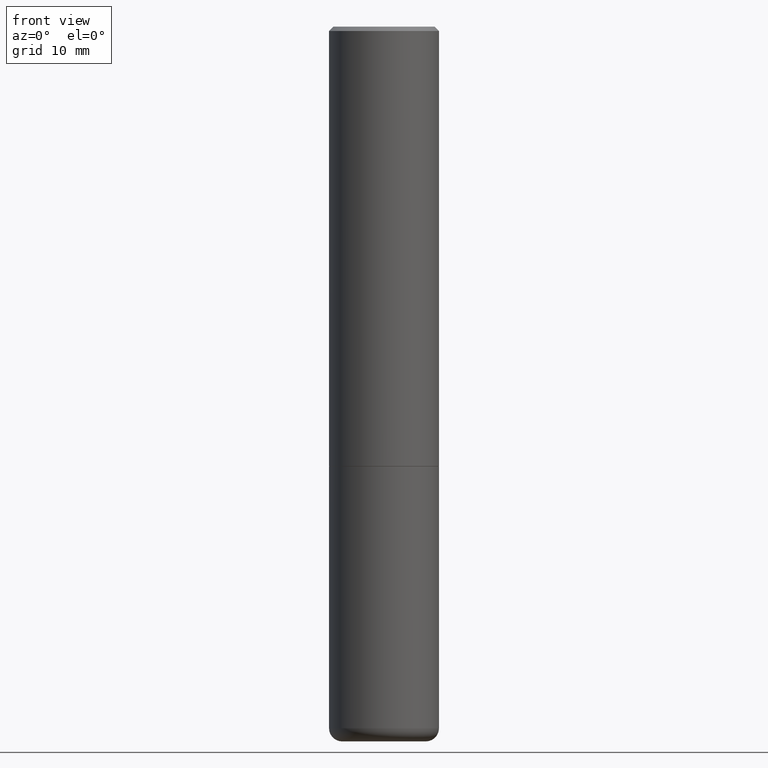
[diagram: clean part render]
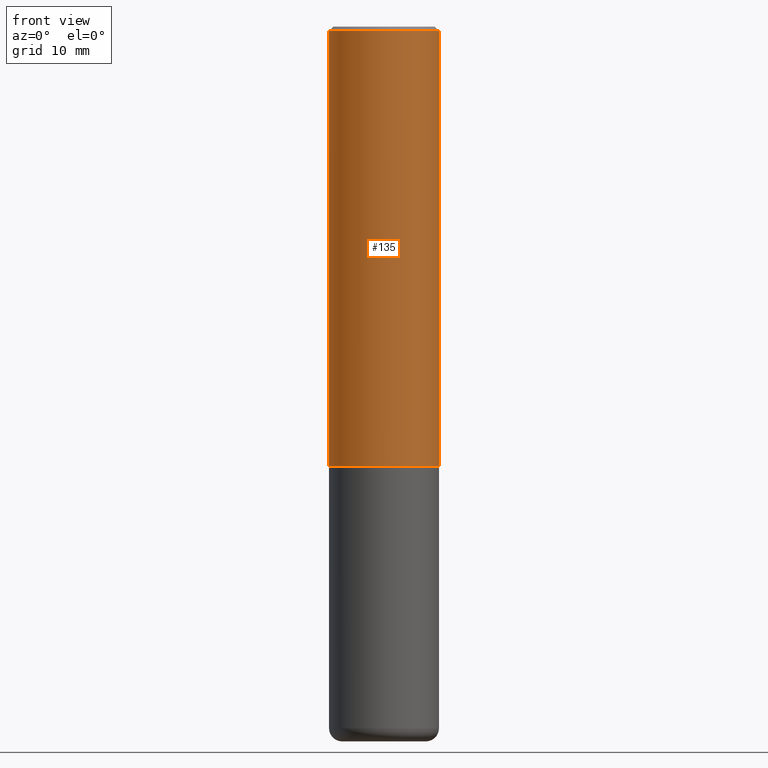
[diagram: same view with one face highlighted and labeled with its STEP entity id]
A machine part, front view. The second image highlights one B-rep face of the part: STEP entity #135.
In plain terms, the highlighted cylindrical surface (partial cylindrical patch) has radius 6.35 mm, axis along (-0, 0, 1).
Its self-contained STEP definition (entity closure, byte-faithful):
#35 = FACE_OUTER_BOUND ( 'NONE', #223, .T. ) ;
#47 = CIRCLE ( 'NONE', #59, 0.2500000000000002776 ) ;
#59 = AXIS2_PLACEMENT_3D ( 'NONE', #399, #171, #165 ) ;
#60 = ORIENTED_EDGE ( 'NONE', *, *, #156, .F. ) ;
#96 = VERTEX_POINT ( 'NONE', #304 ) ;
#98 = DIRECTION ( 'NONE',  ( -2.445468806185136597E-29, 3.491481338843145583E-15, 1.000000000000000000 ) ) ;
#112 = DIRECTION ( 'NONE',  ( -2.445468806185136597E-29, 3.491481338843145583E-15, 1.000000000000000000 ) ) ;
#117 = AXIS2_PLACEMENT_3D ( 'NONE', #370, #112, #269 ) ;
#133 = VERTEX_POINT ( 'NONE', #386 ) ;
#135 = ADVANCED_FACE ( 'NONE', ( #35 ), #352, .T. ) ;
#144 = CARTESIAN_POINT ( 'NONE',  ( 0.2500000000000002776, -8.725211865769015625E-15, -1.998999999999999888 ) ) ;
#156 = EDGE_CURVE ( 'NONE', #96, #178, #354, .T. ) ;
#165 = DIRECTION ( 'NONE',  ( 1.000000000000000000, -6.982962677686266711E-15, 0.000000000000000000 ) ) ;
#171 = DIRECTION ( 'NONE',  ( -2.445468806185136597E-29, 3.491481338843145583E-15, 1.000000000000000000 ) ) ;
#178 = VERTEX_POINT ( 'NONE', #284 ) ;
#216 = VECTOR ( 'NONE', #358, 39.37007874015748143 ) ;
#218 = ORIENTED_EDGE ( 'NONE', *, *, #231, .T. ) ;
#223 = EDGE_LOOP ( 'NONE', ( #60, #353, #218, #307 ) ) ;
#227 = CARTESIAN_POINT ( 'NONE',  ( -0.2500000000000001110, 1.776356839400251254E-15, -1.229733772563727006E-29 ) ) ;
#231 = EDGE_CURVE ( 'NONE', #322, #133, #263, .T. ) ;
#234 = AXIS2_PLACEMENT_3D ( 'NONE', #384, #98, #413 ) ;
#257 = CARTESIAN_POINT ( 'NONE',  ( 0.2500000000000001110, -1.745740669421567467E-15, 1.219044193948984509E-29 ) ) ;
#263 = LINE ( 'NONE', #257, #272 ) ;
#269 = DIRECTION ( 'NONE',  ( 1.000000000000000000, -6.982962677686267499E-15, 0.000000000000000000 ) ) ;
#272 = VECTOR ( 'NONE', #388, 39.37007874015748143 ) ;
#284 = CARTESIAN_POINT ( 'NONE',  ( -0.2499999999999999167, 1.675911042644703182E-15, -0.02000000000000005593 ) ) ;
#304 = CARTESIAN_POINT ( 'NONE',  ( -0.2500000000000002776, -1.748293572161900530E-15, -1.998999999999999888 ) ) ;
#307 = ORIENTED_EDGE ( 'NONE', *, *, #316, .F. ) ;
#316 = EDGE_CURVE ( 'NONE', #178, #133, #342, .T. ) ;
#322 = VERTEX_POINT ( 'NONE', #144 ) ;
#342 = CIRCLE ( 'NONE', #117, 0.2499999999999999167 ) ;
#352 = CYLINDRICAL_SURFACE ( 'NONE', #234, 0.2500000000000001110 ) ;
#353 = ORIENTED_EDGE ( 'NONE', *, *, #394, .T. ) ;
#354 = LINE ( 'NONE', #227, #216 ) ;
#358 = DIRECTION ( 'NONE',  ( -2.445468806185136877E-29, 3.491481338843145188E-15, 1.000000000000000000 ) ) ;
#370 = CARTESIAN_POINT ( 'NONE',  ( 4.890937612370287172E-31, -6.982962677686310098E-17, -0.02000000000000005593 ) ) ;
#384 = CARTESIAN_POINT ( 'NONE',  ( 0.000000000000000000, 0.000000000000000000, 0.000000000000000000 ) ) ;
#386 = CARTESIAN_POINT ( 'NONE',  ( 0.2499999999999999167, -1.784954126219745400E-15, -0.02000000000000005593 ) ) ;
#388 = DIRECTION ( 'NONE',  ( -2.445468806185136877E-29, 3.491481338843145188E-15, 1.000000000000000000 ) ) ;
#394 = EDGE_CURVE ( 'NONE', #96, #322, #47, .T. ) ;
#399 = CARTESIAN_POINT ( 'NONE',  ( 4.888492143564087591E-29, -6.979471196347447369E-15, -1.998999999999999888 ) ) ;
#413 = DIRECTION ( 'NONE',  ( 1.000000000000000000, -6.982962677686266711E-15, 4.876176775795935793E-29 ) ) ;